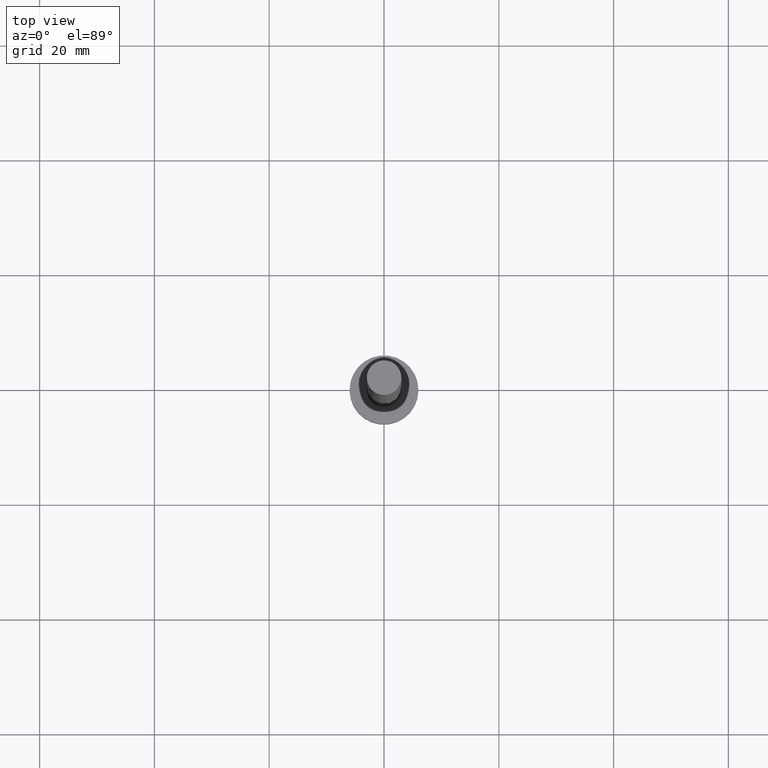
[diagram: clean part render]
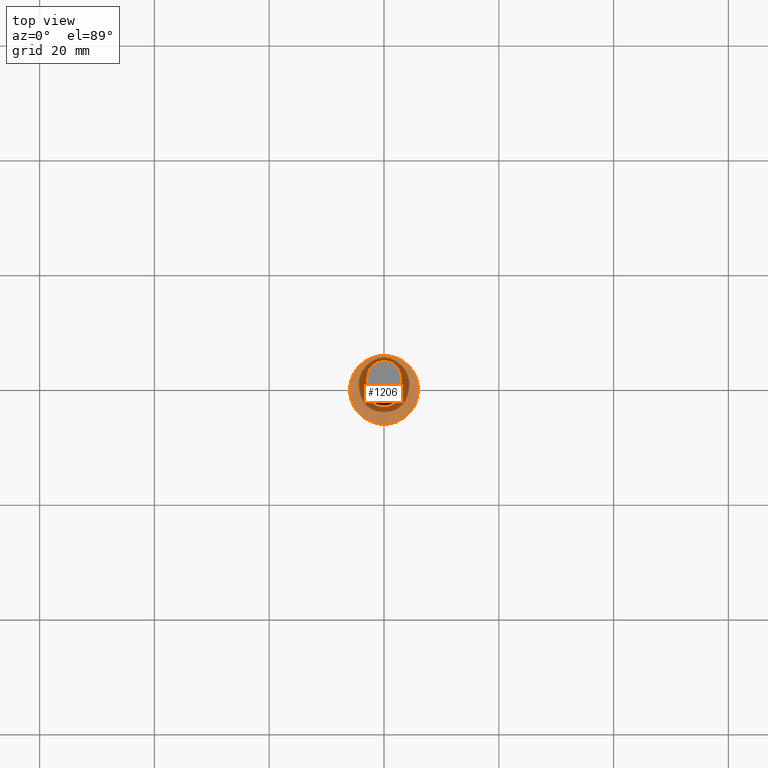
[diagram: same view with one face highlighted and labeled with its STEP entity id]
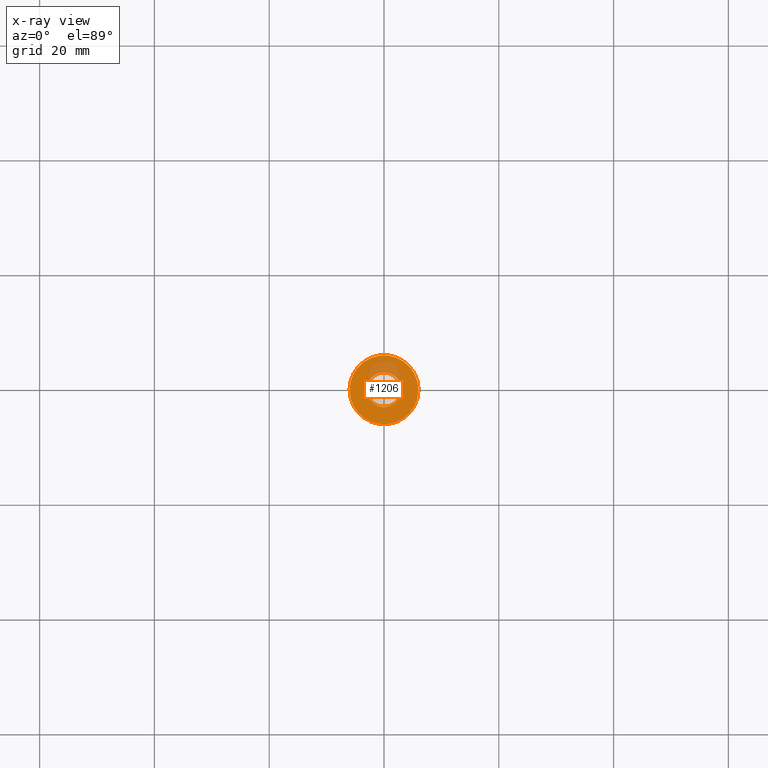
[diagram: x-ray of the same camera — body ghosted, the highlighted face saturated]
A machine part, top view. The second image highlights one B-rep face of the part: STEP entity #1206.
The next image is the same camera in x-ray: the body ghosted, the highlighted face saturated — about 15% of this face is hidden behind the body in this view.
In plain terms, the highlighted planar face has unit normal (0, 0, 1).
Its self-contained STEP definition (entity closure, byte-faithful):
#40 = ORIENTED_EDGE ( 'NONE', *, *, #667, .F. ) ;
#73 = AXIS2_PLACEMENT_3D ( 'NONE', #1008, #1149, #1287 ) ;
#94 = VERTEX_POINT ( 'NONE', #803 ) ;
#154 = CIRCLE ( 'NONE', #970, 3.000000000000000444 ) ;
#190 = CARTESIAN_POINT ( 'NONE',  ( 0.000000000000000000, 0.000000000000000000, 5.000000000000000000 ) ) ;
#210 = FACE_BOUND ( 'NONE', #1697, .T. ) ;
#318 = AXIS2_PLACEMENT_3D ( 'NONE', #1020, #477, #994 ) ;
#319 = CARTESIAN_POINT ( 'NONE',  ( 3.000000000000000444, 3.673940397442060361E-16, 5.000000000000000000 ) ) ;
#390 = ORIENTED_EDGE ( 'NONE', *, *, #1376, .F. ) ;
#450 = DIRECTION ( 'NONE',  ( 0.000000000000000000, 0.000000000000000000, 1.000000000000000000 ) ) ;
#477 = DIRECTION ( 'NONE',  ( 0.000000000000000000, 0.000000000000000000, 1.000000000000000000 ) ) ;
#576 = AXIS2_PLACEMENT_3D ( 'NONE', #1398, #714, #1247 ) ;
#620 = CARTESIAN_POINT ( 'NONE',  ( -6.000000000000000888, 0.000000000000000000, 5.000000000000000000 ) ) ;
#667 = EDGE_CURVE ( 'NONE', #1103, #94, #1107, .T. ) ;
#714 = DIRECTION ( 'NONE',  ( 0.000000000000000000, 0.000000000000000000, 1.000000000000000000 ) ) ;
#727 = FACE_OUTER_BOUND ( 'NONE', #1411, .T. ) ;
#734 = CARTESIAN_POINT ( 'NONE',  ( 6.000000000000000888, 7.347880794884120722E-16, 5.000000000000000000 ) ) ;
#766 = CIRCLE ( 'NONE', #1677, 6.000000000000000888 ) ;
#785 = DIRECTION ( 'NONE',  ( 1.000000000000000000, 0.000000000000000000, 0.000000000000000000 ) ) ;
#803 = CARTESIAN_POINT ( 'NONE',  ( -3.000000000000000444, 0.000000000000000000, 5.000000000000000000 ) ) ;
#834 = EDGE_CURVE ( 'NONE', #1221, #1307, #1081, .T. ) ;
#891 = PLANE ( 'NONE',  #73 ) ;
#900 = DIRECTION ( 'NONE',  ( 0.000000000000000000, 0.000000000000000000, 1.000000000000000000 ) ) ;
#970 = AXIS2_PLACEMENT_3D ( 'NONE', #1189, #900, #785 ) ;
#994 = DIRECTION ( 'NONE',  ( 1.000000000000000000, 0.000000000000000000, 0.000000000000000000 ) ) ;
#1008 = CARTESIAN_POINT ( 'NONE',  ( 0.000000000000000000, 0.000000000000000000, 5.000000000000000000 ) ) ;
#1016 = DIRECTION ( 'NONE',  ( 1.000000000000000000, 0.000000000000000000, 0.000000000000000000 ) ) ;
#1020 = CARTESIAN_POINT ( 'NONE',  ( 0.000000000000000000, 0.000000000000000000, 5.000000000000000000 ) ) ;
#1081 = CIRCLE ( 'NONE', #318, 6.000000000000000888 ) ;
#1103 = VERTEX_POINT ( 'NONE', #319 ) ;
#1107 = CIRCLE ( 'NONE', #576, 3.000000000000000444 ) ;
#1149 = DIRECTION ( 'NONE',  ( 0.000000000000000000, 0.000000000000000000, 1.000000000000000000 ) ) ;
#1189 = CARTESIAN_POINT ( 'NONE',  ( 0.000000000000000000, 0.000000000000000000, 5.000000000000000000 ) ) ;
#1206 = ADVANCED_FACE ( 'NONE', ( #210, #727 ), #891, .T. ) ;
#1221 = VERTEX_POINT ( 'NONE', #620 ) ;
#1243 = EDGE_CURVE ( 'NONE', #1307, #1221, #766, .T. ) ;
#1247 = DIRECTION ( 'NONE',  ( 1.000000000000000000, 0.000000000000000000, 0.000000000000000000 ) ) ;
#1287 = DIRECTION ( 'NONE',  ( 1.000000000000000000, 0.000000000000000000, -0.000000000000000000 ) ) ;
#1307 = VERTEX_POINT ( 'NONE', #734 ) ;
#1318 = ORIENTED_EDGE ( 'NONE', *, *, #834, .T. ) ;
#1376 = EDGE_CURVE ( 'NONE', #94, #1103, #154, .T. ) ;
#1398 = CARTESIAN_POINT ( 'NONE',  ( 0.000000000000000000, 0.000000000000000000, 5.000000000000000000 ) ) ;
#1411 = EDGE_LOOP ( 'NONE', ( #1318, #1587 ) ) ;
#1587 = ORIENTED_EDGE ( 'NONE', *, *, #1243, .T. ) ;
#1677 = AXIS2_PLACEMENT_3D ( 'NONE', #190, #450, #1016 ) ;
#1697 = EDGE_LOOP ( 'NONE', ( #390, #40 ) ) ;